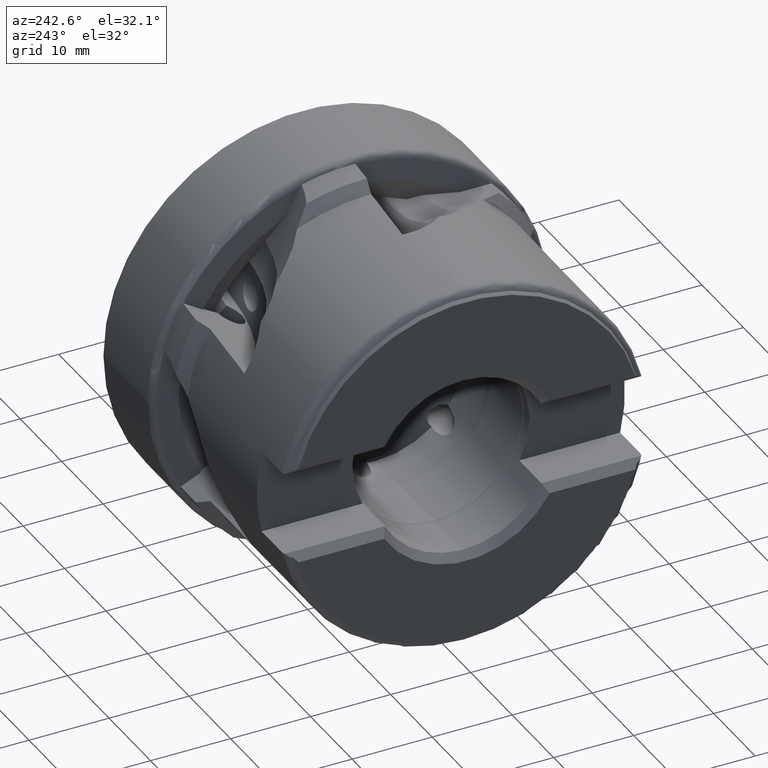
[diagram: clean part render]
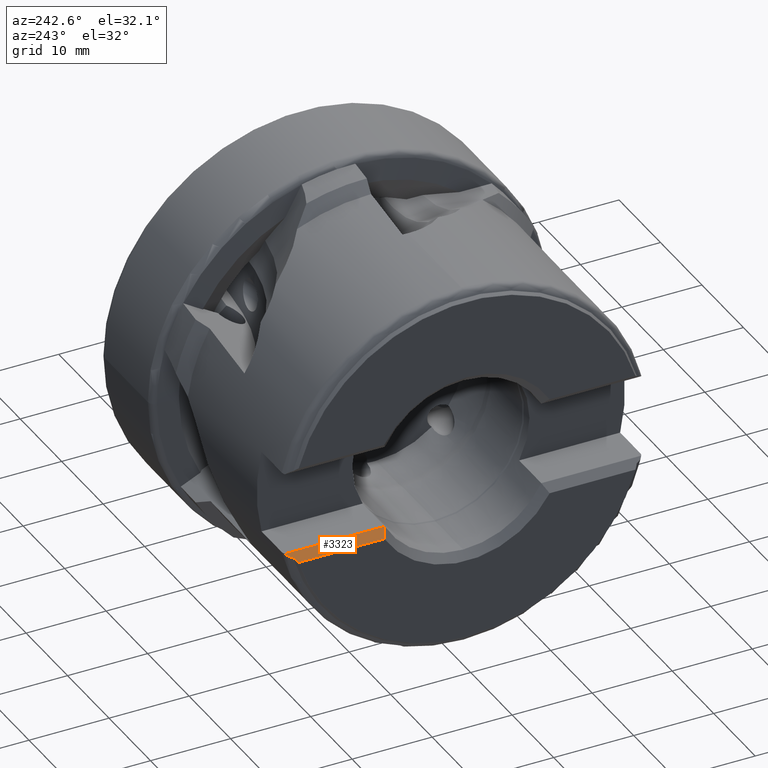
[diagram: same view with one face highlighted and labeled with its STEP entity id]
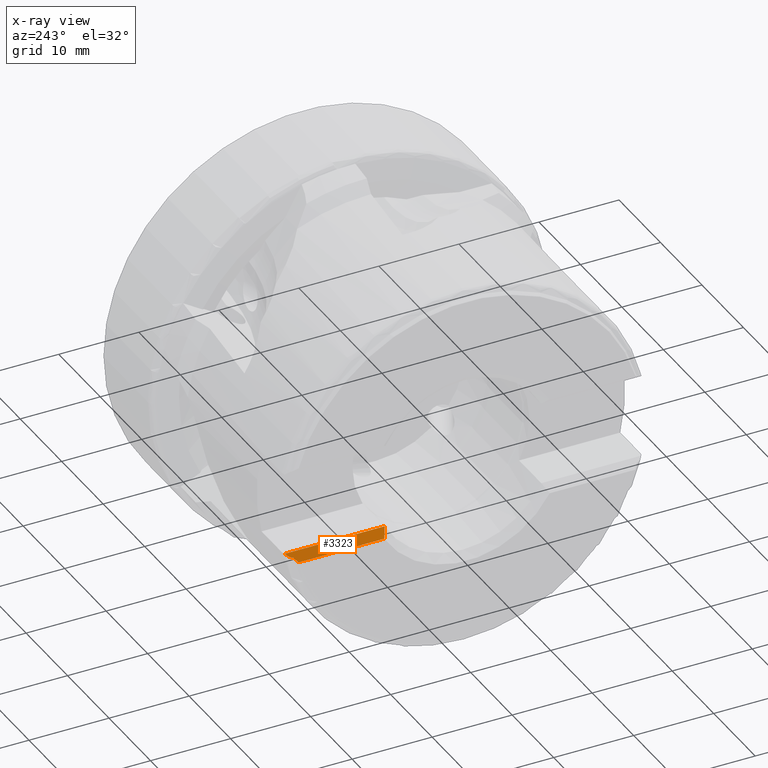
[diagram: x-ray of the same camera — body ghosted, the highlighted face saturated]
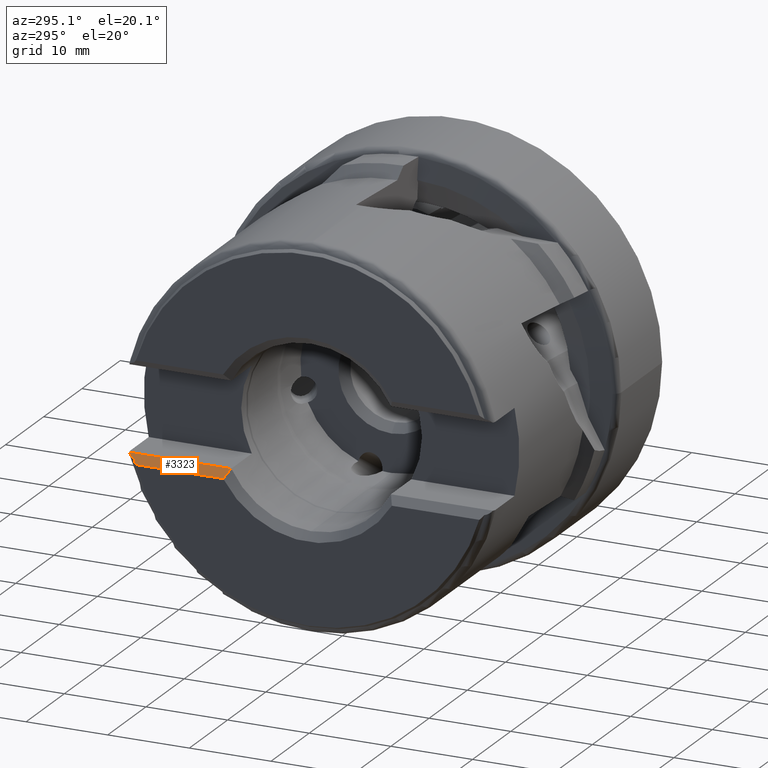
[diagram: same view with one face highlighted and labeled with its STEP entity id]
A machine part, auxiliary view. The second image highlights one B-rep face of the part: STEP entity #3323.
The next image is the same camera in x-ray: the body ghosted, the highlighted face saturated — about 0% of this face is hidden behind the body in this view.
A second angle (auxiliary view) of the same face is appended — the face is thin or edge-on in the first view.
In plain terms, the highlighted planar face has unit normal (0.7071, 0, -0.7071).
Its self-contained STEP definition (entity closure, byte-faithful):
#542 = EDGE_CURVE ( 'NONE', #2927, #2990, #3843, .T. ) ;
#545 = EDGE_CURVE ( 'NONE', #2990, #3016, #3853, .T. ) ;
#547 = EDGE_CURVE ( 'NONE', #3016, #2918, #3614, .T. ) ;
#548 = EDGE_CURVE ( 'NONE', #3022, #2994, #3630, .T. ) ;
#582 = EDGE_CURVE ( 'NONE', #3022, #2927, #5119, .T. ) ;
#583 = EDGE_CURVE ( 'NONE', #2918, #2994, #5121, .T. ) ;
#860 = ORIENTED_EDGE ( 'NONE', *, *, #547, .T. ) ;
#861 = ORIENTED_EDGE ( 'NONE', *, *, #583, .T. ) ;
#862 = ORIENTED_EDGE ( 'NONE', *, *, #548, .F. ) ;
#863 = ORIENTED_EDGE ( 'NONE', *, *, #582, .T. ) ;
#864 = ORIENTED_EDGE ( 'NONE', *, *, #542, .T. ) ;
#865 = ORIENTED_EDGE ( 'NONE', *, *, #545, .T. ) ;
#1456 = AXIS2_PLACEMENT_3D ( 'NONE', #6960, #6965, #6966 ) ;
#2206 = EDGE_LOOP ( 'NONE', ( #860, #861, #862, #863, #864, #865 ) ) ;
#2918 = VERTEX_POINT ( 'NONE', #6773 ) ;
#2927 = VERTEX_POINT ( 'NONE', #6780 ) ;
#2990 = VERTEX_POINT ( 'NONE', #6817 ) ;
#2994 = VERTEX_POINT ( 'NONE', #6820 ) ;
#3016 = VERTEX_POINT ( 'NONE', #6839 ) ;
#3022 = VERTEX_POINT ( 'NONE', #6845 ) ;
#3323 = ADVANCED_FACE ( 'NONE', ( #5281 ), #6959, .F. ) ;
#3614 = B_SPLINE_CURVE_WITH_KNOTS ( 'NONE', 3,
 ( #5742, #5741, #5748, #5749 ),
 .UNSPECIFIED., .F., .F.,
 ( 4, 4 ),
 ( 3.292114746955891400E-007, 9.187014442188142200E-005 ),
 .UNSPECIFIED. ) ;
#3630 = B_SPLINE_CURVE_WITH_KNOTS ( 'NONE', 3,
 ( #5750, #5743, #5735, #5751 ),
 .UNSPECIFIED., .F., .F.,
 ( 4, 4 ),
 ( 3.072932524732206200E-007, 0.001453941778741487100 ),
 .UNSPECIFIED. ) ;
#3843 = B_SPLINE_CURVE_WITH_KNOTS ( 'NONE', 3,
 ( #5722, #5708, #5717, #5723, #5724, #5725, #5726, #5727 ),
 .UNSPECIFIED., .F., .F.,
 ( 4, 2, 2, 4 ),
 ( 3.242587267463806100E-007, 0.0005344094152499710300, 0.0008014519935115818200, 0.001068494571773192500 ),
 .UNSPECIFIED. ) ;
#3853 =( BOUNDED_CURVE ( )  B_SPLINE_CURVE ( 3, ( #5734, #5733, #5739, #5740 ),
 .UNSPECIFIED., .F., .F. ) 
 B_SPLINE_CURVE_WITH_KNOTS ( ( 4, 4 ),
 ( 2.379708837665065700, 2.395898575129885800 ),
 .UNSPECIFIED. ) 
 CURVE ( )  GEOMETRIC_REPRESENTATION_ITEM ( )  RATIONAL_B_SPLINE_CURVE ( ( 1.000000000000000000, 0.9999781578193396300, 0.9999781578193396300, 1.000000000000000000 ) ) 
 REPRESENTATION_ITEM ( '' )  );
#5119 = LINE ( 'NONE', #5898, #5122 ) ;
#5121 = LINE ( 'NONE', #5900, #5124 ) ;
#5122 = VECTOR ( 'NONE', #5899, 1000.000000000000000 ) ;
#5124 = VECTOR ( 'NONE', #5901, 1000.000000000000000 ) ;
#5281 = FACE_OUTER_BOUND ( 'NONE', #2206, .T. ) ;
#5708 = CARTESIAN_POINT ( 'NONE',  ( -38.25979946774829400, 22.17616640606598500, -5.309799467748305800 ) ) ;
#5717 = CARTESIAN_POINT ( 'NONE',  ( -38.35923478510266400, 22.06538752116017200, -5.409234785102681200 ) ) ;
#5722 = CARTESIAN_POINT ( 'NONE',  ( -38.14999999999999900, 22.26690633578259300, -5.199999999999996600 ) ) ;
#5723 = CARTESIAN_POINT ( 'NONE',  ( -38.48567351880766600, 21.86374597437706100, -5.535673518807684900 ) ) ;
#5724 = CARTESIAN_POINT ( 'NONE',  ( -38.52305463495213900, 21.79193892968535100, -5.573054634952134400 ) ) ;
#5725 = CARTESIAN_POINT ( 'NONE',  ( -38.58622442846504400, 21.63715067332383400, -5.636224428465047800 ) ) ;
#5726 = CARTESIAN_POINT ( 'NONE',  ( -38.61200591172719500, 21.55375694714094000, -5.662005911727192100 ) ) ;
#5727 = CARTESIAN_POINT ( 'NONE',  ( -38.62876197310683300, 21.46657139491063800, -5.678761973106833900 ) ) ;
#5733 = CARTESIAN_POINT ( 'NONE',  ( -38.77023770943653600, 21.34514368195336300, -5.820237709436535800 ) ) ;
#5734 = CARTESIAN_POINT ( 'NONE',  ( -38.62876197310683300, 21.46657139491063800, -5.678761973106833900 ) ) ;
#5735 = CARTESIAN_POINT ( 'NONE',  ( -38.78209013954435100, 10.15260328986868300, -5.832090139544360100 ) ) ;
#5739 = CARTESIAN_POINT ( 'NONE',  ( -38.91050843023978700, 21.22278218878326700, -5.960508430239781500 ) ) ;
#5740 = CARTESIAN_POINT ( 'NONE',  ( -39.04956494406127400, 21.09949493332587200, -6.099564944061280700 ) ) ;
#5741 = CARTESIAN_POINT ( 'NONE',  ( -39.06809635619629300, 21.08306501660288700, -6.118096356196293300 ) ) ;
#5742 = CARTESIAN_POINT ( 'NONE',  ( -39.04956494406127400, 21.09949493332587200, -6.099564944061280700 ) ) ;
#5743 = CARTESIAN_POINT ( 'NONE',  ( -38.46536343124154200, 9.967800487793345700, -5.515363431241548900 ) ) ;
#5748 = CARTESIAN_POINT ( 'NONE',  ( -39.08501048942473900, 21.06405126368808600, -6.135010489424744600 ) ) ;
#5749 = CARTESIAN_POINT ( 'NONE',  ( -39.10000000000000100, 21.04196264864115300, -6.150000000000009200 ) ) ;
#5750 = CARTESIAN_POINT ( 'NONE',  ( -38.14999999999999900, 9.778324242936516700, -5.199999999999996600 ) ) ;
#5751 = CARTESIAN_POINT ( 'NONE',  ( -39.10000000000000100, 10.33335013439494600, -6.150000000000009200 ) ) ;
#5898 = CARTESIAN_POINT ( 'NONE',  ( -38.14999999999999900, -25.00000000000000000, -5.199999999999996600 ) ) ;
#5899 = DIRECTION ( 'NONE',  ( -0.0000000000000000000, 1.000000000000000000, -0.0000000000000000000 ) ) ;
#5900 = CARTESIAN_POINT ( 'NONE',  ( -39.10000000000000100, -25.00000000000000000, -6.150000000000011000 ) ) ;
#5901 = DIRECTION ( 'NONE',  ( -0.0000000000000000000, -1.000000000000000000, 0.0000000000000000000 ) ) ;
#6773 = CARTESIAN_POINT ( 'NONE',  ( -39.10000000000000100, 21.04196264864115300, -6.150000000000009200 ) ) ;
#6780 = CARTESIAN_POINT ( 'NONE',  ( -38.14999999999999900, 22.26690633578259300, -5.199999999999996600 ) ) ;
#6817 = CARTESIAN_POINT ( 'NONE',  ( -38.62876197310683300, 21.46657139491063800, -5.678761973106833900 ) ) ;
#6820 = CARTESIAN_POINT ( 'NONE',  ( -39.10000000000000100, 10.33335013439494600, -6.150000000000009200 ) ) ;
#6839 = CARTESIAN_POINT ( 'NONE',  ( -39.04956494406127400, 21.09949493332587200, -6.099564944061280700 ) ) ;
#6845 = CARTESIAN_POINT ( 'NONE',  ( -38.14999999999999900, 9.778324242936516700, -5.199999999999996600 ) ) ;
#6959 = PLANE ( 'NONE',  #1456 ) ;
#6960 = CARTESIAN_POINT ( 'NONE',  ( -39.14999999999999900, -25.00000000000000000, -6.200000000000005500 ) ) ;
#6965 = DIRECTION ( 'NONE',  ( 0.7071067811865505700, 0.0000000000000000000, -0.7071067811865444600 ) ) ;
#6966 = DIRECTION ( 'NONE',  ( -0.7071067811865444600, 0.0000000000000000000, -0.7071067811865505700 ) ) ;